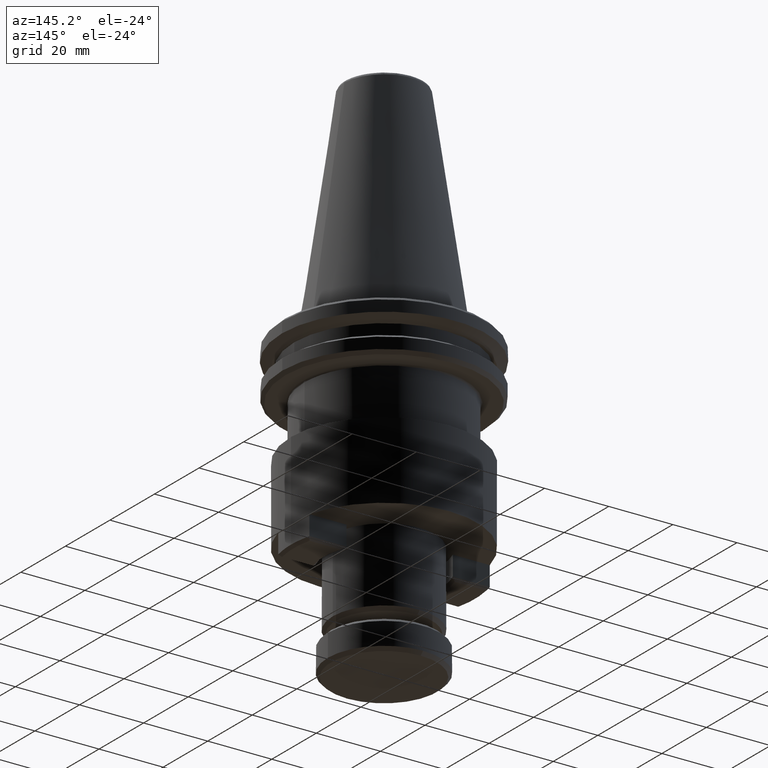
[diagram: clean part render]
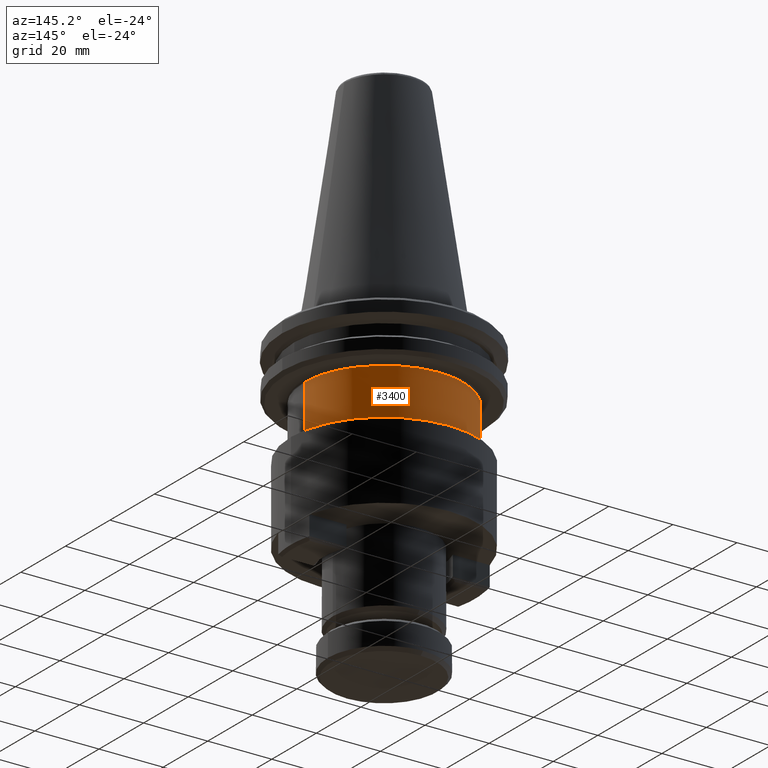
[diagram: same view with one face highlighted and labeled with its STEP entity id]
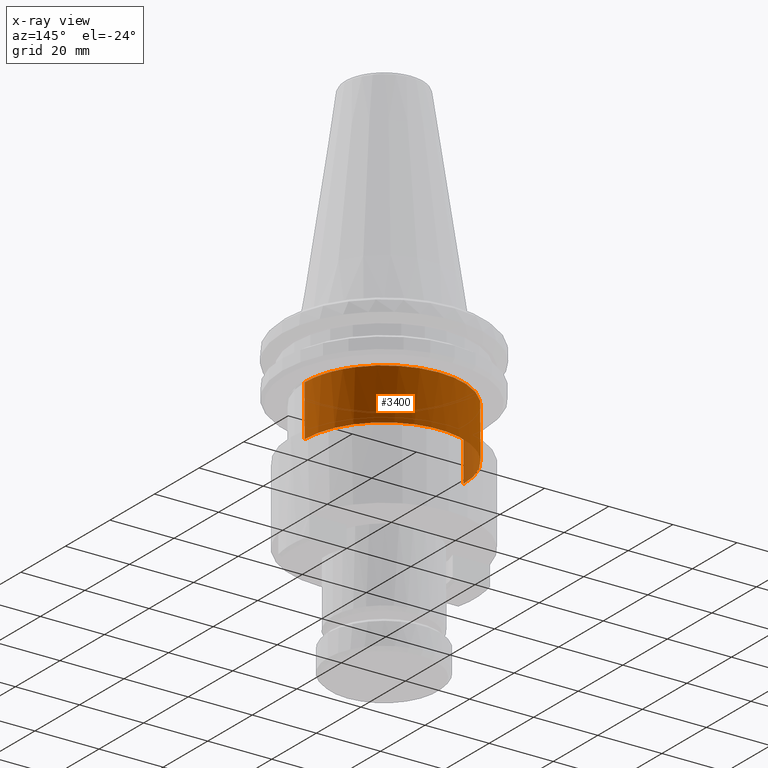
[diagram: x-ray of the same camera — body ghosted, the highlighted face saturated]
A machine part, auxiliary view. The second image highlights one B-rep face of the part: STEP entity #3400.
The next image is the same camera in x-ray: the body ghosted, the highlighted face saturated — about 5% of this face is hidden behind the body in this view.
In plain terms, the highlighted cylindrical surface (partial cylindrical patch) has radius 24.75 mm, axis along (0, -0, 1).
Its self-contained STEP definition (entity closure, byte-faithful):
#11 = CARTESIAN_POINT ( 'NONE',  ( 78.71940113497331000, 118.2411947463522400, 76.16398861894036500 ) ) ;
#17 = EDGE_CURVE ( 'NONE', #1057, #1942, #2921, .T. ) ;
#25 = VERTEX_POINT ( 'NONE', #968 ) ;
#33 = CARTESIAN_POINT ( 'NONE',  ( 82.29877265865518200, 93.68607934060428000, 60.16398860271279100 ) ) ;
#67 = EDGE_CURVE ( 'NONE', #3265, #1524, #2766, .T. ) ;
#132 = EDGE_CURVE ( 'NONE', #1349, #748, #2916, .T. ) ;
#140 = VECTOR ( 'NONE', #2524, 1000.000000000000000 ) ;
#162 = LINE ( 'NONE', #1762, #140 ) ;
#185 = DIRECTION ( 'NONE',  ( 0.0000000000000000000, -0.0000000000000000000, 1.000000000000000000 ) ) ;
#198 = ORIENTED_EDGE ( 'NONE', *, *, #132, .T. ) ;
#227 = CARTESIAN_POINT ( 'NONE',  ( 82.29877265865518200, 93.68607934060428000, 76.16398861755008900 ) ) ;
#264 = DIRECTION ( 'NONE',  ( 1.000000000000000000, 0.0000000000000000000, 0.0000000000000000000 ) ) ;
#286 = B_SPLINE_CURVE_WITH_KNOTS ( 'NONE', 3,
 ( #2663, #867, #2182, #613, #2436, #886, #2672, #1149, #2943, #1405 ),
 .UNSPECIFIED., .F., .F.,
 ( 4, 2, 2, 2, 4 ),
 ( 0.0000000000000000000, 0.2500000000000000000, 0.5000000000000000000, 0.7500000000000000000, 1.000000000000000000 ),
 .UNSPECIFIED. ) ;
#303 = CARTESIAN_POINT ( 'NONE',  ( 107.0487726586551700, 93.68607934060428000, 60.16398860272179400 ) ) ;
#378 = CARTESIAN_POINT ( 'NONE',  ( 64.57485299860236700, 111.0535277708757200, 76.16398861894035100 ) ) ;
#390 = DIRECTION ( 'NONE',  ( 0.0000000000000000000, -0.0000000000000000000, 1.000000000000000000 ) ) ;
#425 = CARTESIAN_POINT ( 'NONE',  ( 57.54877265865517400, 93.68607934060428000, 76.16398861755008900 ) ) ;
#427 = EDGE_CURVE ( 'NONE', #1942, #1349, #2554, .T. ) ;
#429 = DIRECTION ( 'NONE',  ( -0.0000000000000000000, -0.0000000000000000000, 1.000000000000000000 ) ) ;
#503 = FACE_OUTER_BOUND ( 'NONE', #1521, .T. ) ;
#509 = DIRECTION ( 'NONE',  ( -1.000000000000000000, 0.0000000000000000000, 0.0000000000000000000 ) ) ;
#527 = CARTESIAN_POINT ( 'NONE',  ( 73.51810031394553800, 116.8952453374469400, 76.16398861894035100 ) ) ;
#599 = DIRECTION ( 'NONE',  ( -0.0000000000000000000, 0.0000000000000000000, -1.000000000000000000 ) ) ;
#609 = ORIENTED_EDGE ( 'NONE', *, *, #3088, .T. ) ;
#613 = CARTESIAN_POINT ( 'NONE',  ( 91.88306514610157200, 116.6361370569467900, 76.16398861894038000 ) ) ;
#672 = CARTESIAN_POINT ( 'NONE',  ( 63.41770955426498100, 109.6882028486056400, 76.16410853247727200 ) ) ;
#680 = CARTESIAN_POINT ( 'NONE',  ( 63.41770955426498100, 109.6882028486056400, 76.16410853247727200 ) ) ;
#748 = VERTEX_POINT ( 'NONE', #1680 ) ;
#754 = ORIENTED_EDGE ( 'NONE', *, *, #1278, .T. ) ;
#797 = CARTESIAN_POINT ( 'NONE',  ( 57.81827653559978600, 97.32857979471502600, 76.16398861755008900 ) ) ;
#814 = EDGE_CURVE ( 'NONE', #748, #971, #2064, .T. ) ;
#867 = CARTESIAN_POINT ( 'NONE',  ( 84.74853012999258800, 118.4360793406042800, 76.16398861894035100 ) ) ;
#878 = CYLINDRICAL_SURFACE ( 'NONE', #1395, 24.74999999999999300 ) ;
#882 = ORIENTED_EDGE ( 'NONE', *, *, #427, .T. ) ;
#886 = CARTESIAN_POINT ( 'NONE',  ( 98.17871041125876300, 112.8274321831232600, 76.16398861894035100 ) ) ;
#922 = ORIENTED_EDGE ( 'NONE', *, *, #67, .T. ) ;
#940 = ORIENTED_EDGE ( 'NONE', *, *, #2914, .T. ) ;
#968 = CARTESIAN_POINT ( 'NONE',  ( 105.2553015640023200, 102.9359594108400800, 76.16410853247730000 ) ) ;
#971 = VERTEX_POINT ( 'NONE', #425 ) ;
#1021 = CARTESIAN_POINT ( 'NONE',  ( 75.22385995231759600, 117.4707635573822600, 76.16398861894036500 ) ) ;
#1057 = VERTEX_POINT ( 'NONE', #303 ) ;
#1065 = CARTESIAN_POINT ( 'NONE',  ( 82.29877265865519600, 118.4360793552063200, 76.16410853247727200 ) ) ;
#1102 = DIRECTION ( 'NONE',  ( 0.0000000000000000000, -0.0000000000000000000, 1.000000000000000000 ) ) ;
#1113 = CARTESIAN_POINT ( 'NONE',  ( 63.41770955426498100, 109.6882028486056400, 76.16410853247727200 ) ) ;
#1134 = CARTESIAN_POINT ( 'NONE',  ( 58.80919466919201000, 101.8131779526692800, 76.16398861894035100 ) ) ;
#1149 = CARTESIAN_POINT ( 'NONE',  ( 103.0844234467954700, 107.3433313695395700, 76.16398861894036500 ) ) ;
#1278 = EDGE_CURVE ( 'NONE', #2604, #3265, #3096, .T. ) ;
#1286 = CARTESIAN_POINT ( 'NONE',  ( 60.69985648086137100, 105.9863568138134700, 76.16398861894038000 ) ) ;
#1304 = DIRECTION ( 'NONE',  ( -1.000000000000000000, 1.682156097916903900E-015, 0.0000000000000000000 ) ) ;
#1324 = AXIS2_PLACEMENT_3D ( 'NONE', #2703, #1102, #264 ) ;
#1349 = VERTEX_POINT ( 'NONE', #2361 ) ;
#1395 = AXIS2_PLACEMENT_3D ( 'NONE', #2553, #185, #2794 ) ;
#1405 = CARTESIAN_POINT ( 'NONE',  ( 105.2553015640023200, 102.9359594108400800, 76.16410853247730000 ) ) ;
#1427 = DIRECTION ( 'NONE',  ( 0.0000000000000000000, -0.0000000000000000000, 1.000000000000000000 ) ) ;
#1457 = AXIS2_PLACEMENT_3D ( 'NONE', #2169, #599, #2425 ) ;
#1486 = AXIS2_PLACEMENT_3D ( 'NONE', #3289, #1427, #2009 ) ;
#1521 = EDGE_LOOP ( 'NONE', ( #198, #2645, #609, #754, #922, #940, #1589, #2549, #3357, #882 ) ) ;
#1524 = VERTEX_POINT ( 'NONE', #3222 ) ;
#1589 = ORIENTED_EDGE ( 'NONE', *, *, #3318, .T. ) ;
#1592 = AXIS2_PLACEMENT_3D ( 'NONE', #33, #429, #1304 ) ;
#1680 = CARTESIAN_POINT ( 'NONE',  ( 57.54877265865517400, 93.68607934060428000, 60.16398860328647700 ) ) ;
#1762 = CARTESIAN_POINT ( 'NONE',  ( 107.0487726586551700, 93.68607934060428000, 60.16398860271280600 ) ) ;
#1833 = CARTESIAN_POINT ( 'NONE',  ( 65.88062566590294000, 112.2927996969305400, 76.16398861894035100 ) ) ;
#1882 = CARTESIAN_POINT ( 'NONE',  ( 68.72840916438481400, 114.4613248921619800, 76.16398861894038000 ) ) ;
#1942 = VERTEX_POINT ( 'NONE', #3215 ) ;
#2009 = DIRECTION ( 'NONE',  ( 1.000000000000000000, 0.0000000000000000000, 0.0000000000000000000 ) ) ;
#2015 = CARTESIAN_POINT ( 'NONE',  ( 70.27031511243232800, 115.3904982951135300, 76.16398861894036500 ) ) ;
#2064 = LINE ( 'NONE', #2280, #2138 ) ;
#2085 = DIRECTION ( 'NONE',  ( -0.0000000000000000000, -0.0000000000000000000, -1.000000000000000000 ) ) ;
#2138 = VECTOR ( 'NONE', #390, 1000.000000000000000 ) ;
#2169 = CARTESIAN_POINT ( 'NONE',  ( 82.29877265865518200, 93.68607934060428000, 76.16398860203585700 ) ) ;
#2182 = CARTESIAN_POINT ( 'NONE',  ( 87.19797150136966500, 118.0697144750119200, 76.16398861894035100 ) ) ;
#2185 = CIRCLE ( 'NONE', #3087, 24.74999999978033600 ) ;
#2280 = CARTESIAN_POINT ( 'NONE',  ( 57.54877265865517400, 93.68607934060428000, 60.16398860271280600 ) ) ;
#2298 = CARTESIAN_POINT ( 'NONE',  ( 61.93662831052783700, 107.9406604820944700, 76.16398861894036500 ) ) ;
#2361 = CARTESIAN_POINT ( 'NONE',  ( 75.33386059896669500, 117.4358688133724100, 60.16398860328914100 ) ) ;
#2425 = DIRECTION ( 'NONE',  ( 1.000000000000000000, 0.0000000000000000000, 0.0000000000000000000 ) ) ;
#2436 = CARTESIAN_POINT ( 'NONE',  ( 94.11811288699452400, 115.5691094835057600, 76.16398861894036500 ) ) ;
#2492 = CARTESIAN_POINT ( 'NONE',  ( 57.81827653559978600, 97.32857979471502600, 76.16398861755008900 ) ) ;
#2524 = DIRECTION ( 'NONE',  ( 0.0000000000000000000, -0.0000000000000000000, 1.000000000000000000 ) ) ;
#2544 = CARTESIAN_POINT ( 'NONE',  ( 107.0487726586551700, 93.68607934060428000, 76.16398860203585700 ) ) ;
#2549 = ORIENTED_EDGE ( 'NONE', *, *, #2717, .F. ) ;
#2553 = CARTESIAN_POINT ( 'NONE',  ( 82.29877265865518200, 93.68607934060428000, 60.16398860271280600 ) ) ;
#2554 = CIRCLE ( 'NONE', #1592, 24.75000000000000000 ) ;
#2573 = CIRCLE ( 'NONE', #1457, 24.74999999999999300 ) ;
#2604 = VERTEX_POINT ( 'NONE', #2492 ) ;
#2645 = ORIENTED_EDGE ( 'NONE', *, *, #814, .T. ) ;
#2663 = CARTESIAN_POINT ( 'NONE',  ( 82.29877265865519600, 118.4360793552063200, 76.16410853247727200 ) ) ;
#2672 = CARTESIAN_POINT ( 'NONE',  ( 100.0037362428792300, 111.1531362234816500, 76.16398861894036500 ) ) ;
#2703 = CARTESIAN_POINT ( 'NONE',  ( 82.29877265865518200, 93.68607934060428000, 60.16398860328647700 ) ) ;
#2706 = CARTESIAN_POINT ( 'NONE',  ( 58.15549130705714000, 99.59471467804726800, 76.16398861894035100 ) ) ;
#2717 = EDGE_CURVE ( 'NONE', #1057, #3378, #162, .T. ) ;
#2766 = B_SPLINE_CURVE_WITH_KNOTS ( 'NONE', 3,
 ( #680, #378, #1833, #1882, #2015, #527, #1021, #11, #2989, #1065 ),
 .UNSPECIFIED., .F., .F.,
 ( 4, 2, 2, 2, 4 ),
 ( 0.0000000000000000000, 0.2500000000000000000, 0.5000000000000000000, 0.7500000000000000000, 1.000000000000000000 ),
 .UNSPECIFIED. ) ;
#2794 = DIRECTION ( 'NONE',  ( 1.000000000000000000, 0.0000000000000000000, 0.0000000000000000000 ) ) ;
#2914 = EDGE_CURVE ( 'NONE', #1524, #25, #286, .T. ) ;
#2916 = CIRCLE ( 'NONE', #1324, 24.74999999999999300 ) ;
#2921 = CIRCLE ( 'NONE', #1486, 24.74999999999999300 ) ;
#2943 = CARTESIAN_POINT ( 'NONE',  ( 104.3396873082705100, 105.2083140664179400, 76.16398861894036500 ) ) ;
#2989 = CARTESIAN_POINT ( 'NONE',  ( 80.50905393937415500, 118.4360793406042900, 76.16398861894036500 ) ) ;
#3087 = AXIS2_PLACEMENT_3D ( 'NONE', #227, #2085, #509 ) ;
#3088 = EDGE_CURVE ( 'NONE', #971, #2604, #2185, .T. ) ;
#3096 = B_SPLINE_CURVE_WITH_KNOTS ( 'NONE', 3,
 ( #797, #2706, #1134, #1286, #2298, #672 ),
 .UNSPECIFIED., .F., .F.,
 ( 4, 2, 4 ),
 ( 0.0000000000000000000, 0.5000000000000000000, 1.000000000000000000 ),
 .UNSPECIFIED. ) ;
#3215 = CARTESIAN_POINT ( 'NONE',  ( 89.26368471843098000, 117.4358688133467700, 60.16398860241962900 ) ) ;
#3222 = CARTESIAN_POINT ( 'NONE',  ( 82.29877265865519600, 118.4360793552063200, 76.16410853247727200 ) ) ;
#3265 = VERTEX_POINT ( 'NONE', #1113 ) ;
#3289 = CARTESIAN_POINT ( 'NONE',  ( 82.29877265865518200, 93.68607934060428000, 60.16398860271280600 ) ) ;
#3318 = EDGE_CURVE ( 'NONE', #25, #3378, #2573, .T. ) ;
#3357 = ORIENTED_EDGE ( 'NONE', *, *, #17, .T. ) ;
#3378 = VERTEX_POINT ( 'NONE', #2544 ) ;
#3400 = ADVANCED_FACE ( 'NONE', ( #503 ), #878, .T. ) ;